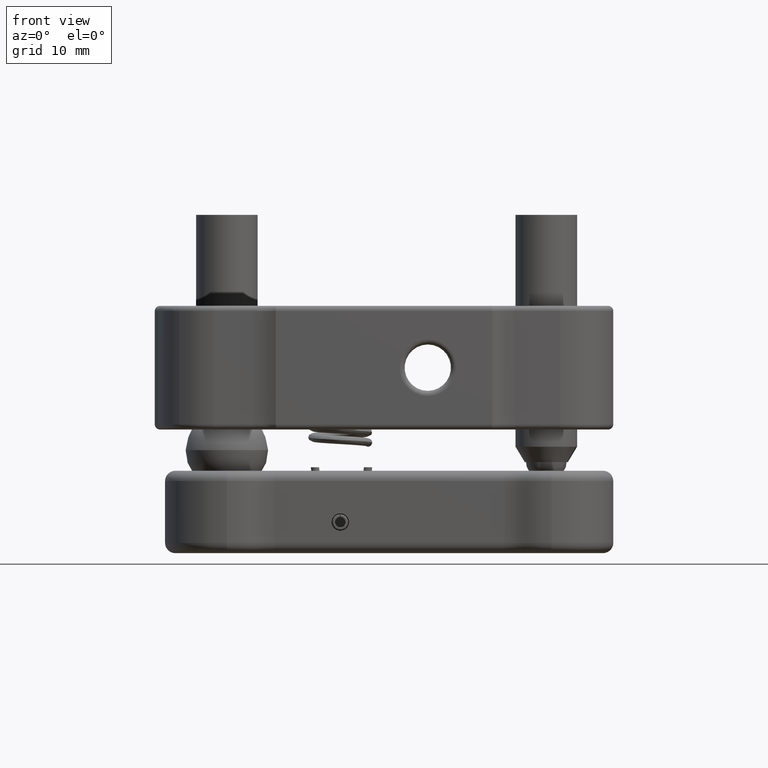
[diagram: clean part render]
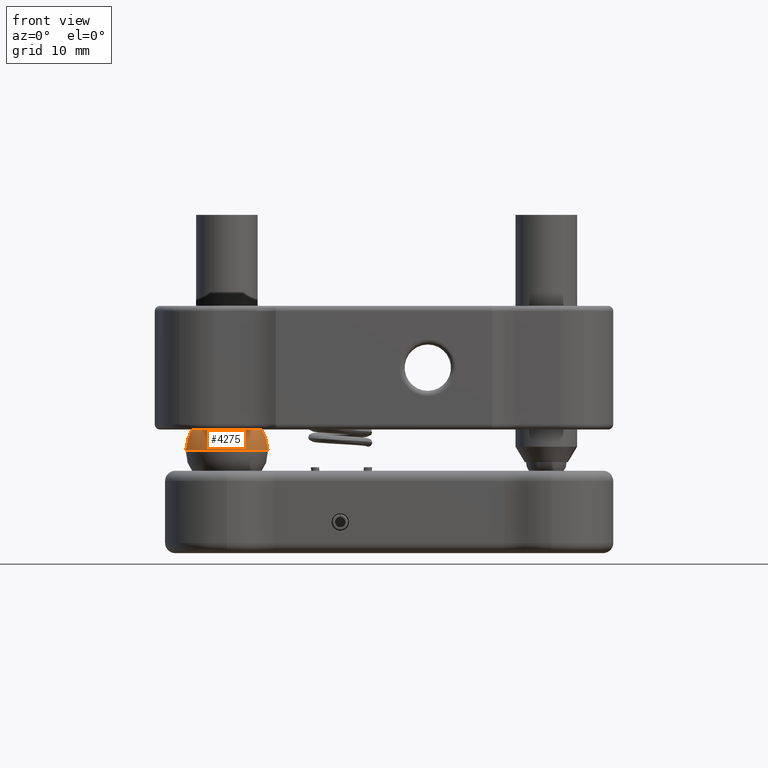
[diagram: same view with one face highlighted and labeled with its STEP entity id]
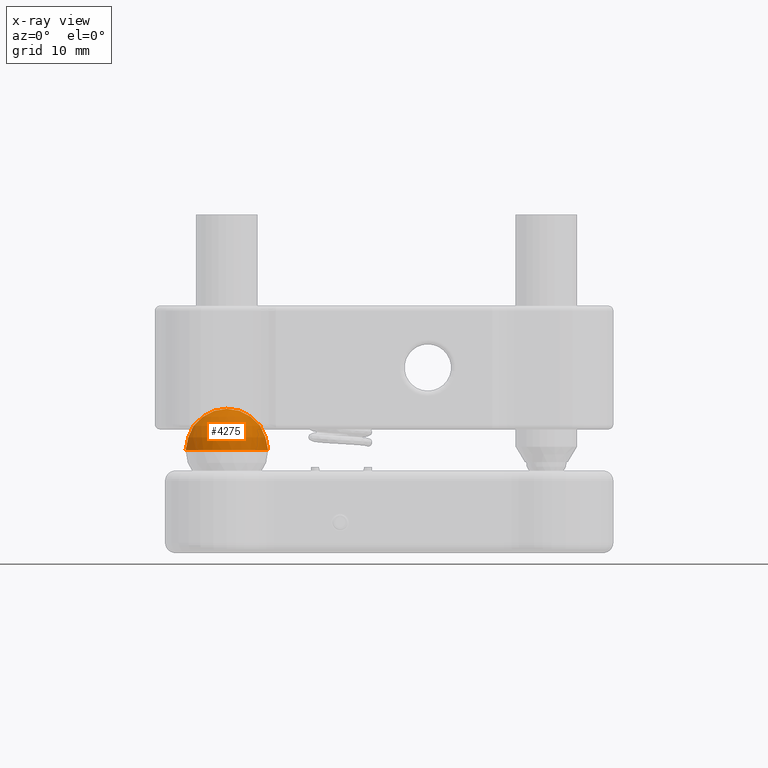
[diagram: x-ray of the same camera — body ghosted, the highlighted face saturated]
A machine part, front view. The second image highlights one B-rep face of the part: STEP entity #4275.
The next image is the same camera in x-ray: the body ghosted, the highlighted face saturated — about 0% of this face is hidden behind the body in this view.
In plain terms, the highlighted spherical surface has radius 4 mm.
Its self-contained STEP definition (entity closure, byte-faithful):
#2945 = DIRECTION ( 'NONE',  ( 2.831068712794149200E-015, 1.000000000000000000, 4.336808689942017700E-016 ) ) ;
#4275 = ADVANCED_FACE ( 'NONE', ( #15653 ), #14052, .T. ) ;
#6278 = CARTESIAN_POINT ( 'NONE',  ( 0.0000000000000000000, 0.0000000000000000000, -8.000000000000000000 ) ) ;
#7080 = CIRCLE ( 'NONE', #14235, 4.000000000000000000 ) ;
#7254 = CARTESIAN_POINT ( 'NONE',  ( -4.000000000000000000, -1.107934549134712600E-014, -8.000000000000003600 ) ) ;
#7425 = CARTESIAN_POINT ( 'NONE',  ( 0.0000000000000000000, 0.0000000000000000000, -8.000000000000000000 ) ) ;
#7724 = CARTESIAN_POINT ( 'NONE',  ( 0.0000000000000000000, 0.0000000000000000000, -8.000000000000000000 ) ) ;
#7745 = AXIS2_PLACEMENT_3D ( 'NONE', #7724, #19588, #9403 ) ;
#9096 = DIRECTION ( 'NONE',  ( 1.000000000000000000, 0.0000000000000000000, 8.673617379884035500E-016 ) ) ;
#9403 = DIRECTION ( 'NONE',  ( -1.000000000000000000, 0.0000000000000000000, -8.673617379884035500E-016 ) ) ;
#10988 = CARTESIAN_POINT ( 'NONE',  ( 4.000000000000000000, 1.156920421100606700E-014, -7.999999999999996400 ) ) ;
#11132 = EDGE_CURVE ( 'NONE', #20178, #20887, #13016, .T. ) ;
#13016 = CIRCLE ( 'NONE', #7745, 4.000000000000000000 ) ;
#13091 = AXIS2_PLACEMENT_3D ( 'NONE', #6278, #13102, #2945 ) ;
#13102 = DIRECTION ( 'NONE',  ( 9.369561891591502400E-016, 4.336808689941991100E-016, -1.000000000000000000 ) ) ;
#14052 = SPHERICAL_SURFACE ( 'NONE', #13091, 4.000000000000000000 ) ;
#14235 = AXIS2_PLACEMENT_3D ( 'NONE', #7425, #19277, #9096 ) ;
#15653 = FACE_OUTER_BOUND ( 'NONE', #18095, .T. ) ;
#16326 = ORIENTED_EDGE ( 'NONE', *, *, #16881, .T. ) ;
#16881 = EDGE_CURVE ( 'NONE', #20178, #20887, #7080, .T. ) ;
#16922 = ORIENTED_EDGE ( 'NONE', *, *, #11132, .F. ) ;
#18095 = EDGE_LOOP ( 'NONE', ( #16922, #16326 ) ) ;
#19277 = DIRECTION ( 'NONE',  ( -9.369561891591502400E-016, -4.144134906478959200E-016, 1.000000000000000000 ) ) ;
#19588 = DIRECTION ( 'NONE',  ( 9.369561891591498500E-016, 5.368781705626312700E-016, -1.000000000000000000 ) ) ;
#20178 = VERTEX_POINT ( 'NONE', #10988 ) ;
#20887 = VERTEX_POINT ( 'NONE', #7254 ) ;